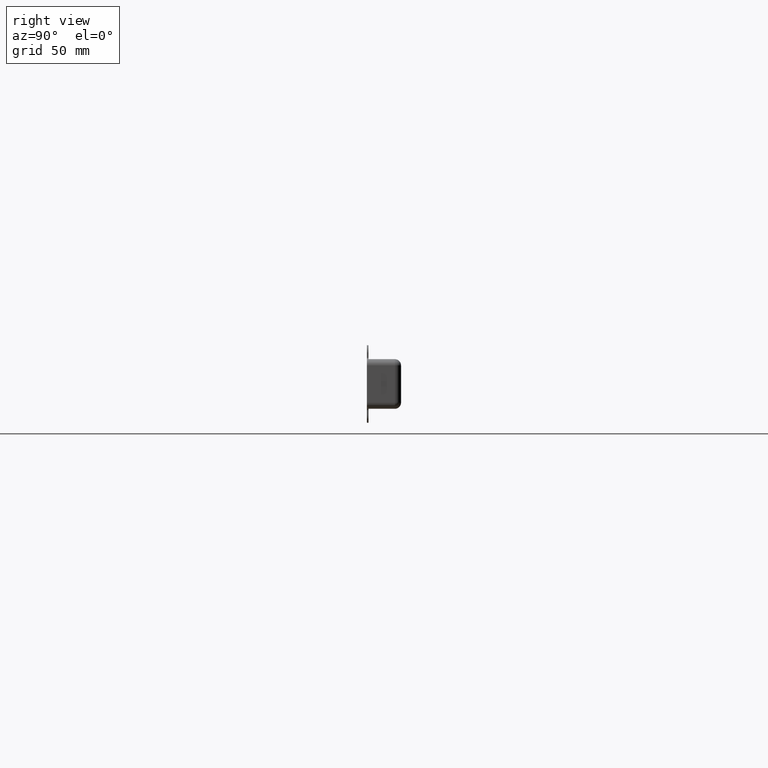
[diagram: clean part render]
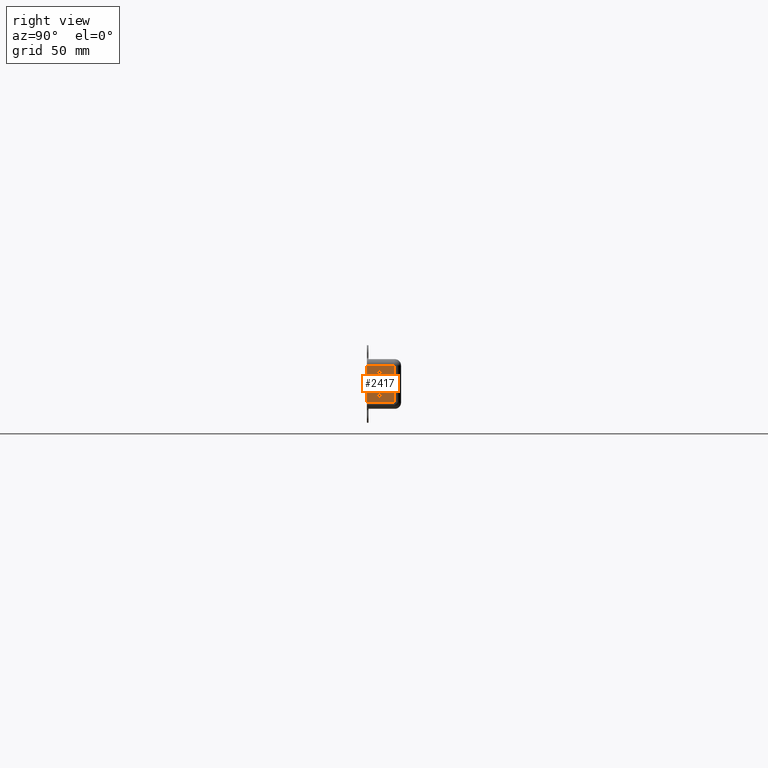
[diagram: same view with one face highlighted and labeled with its STEP entity id]
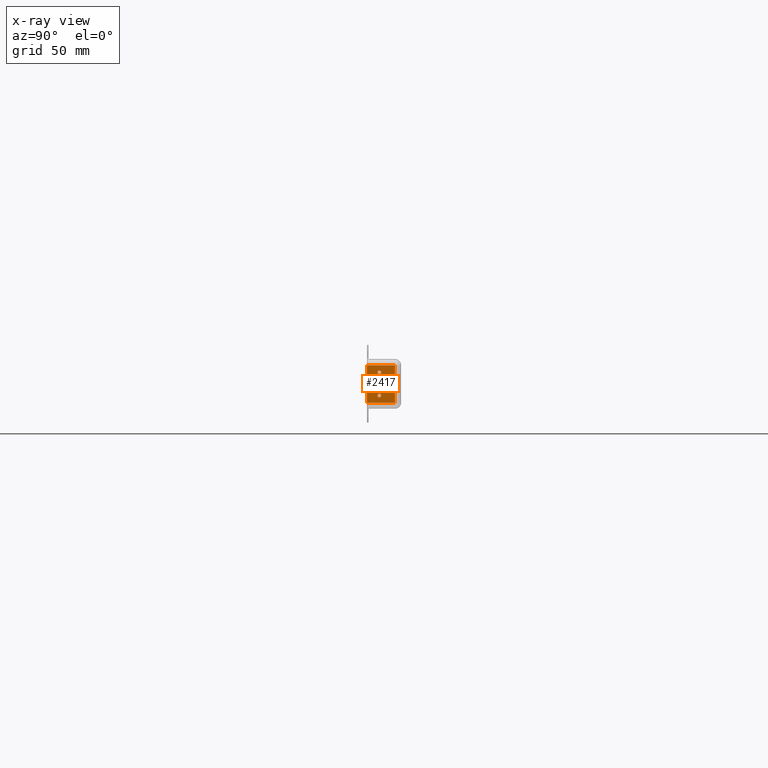
[diagram: x-ray of the same camera — body ghosted, the highlighted face saturated]
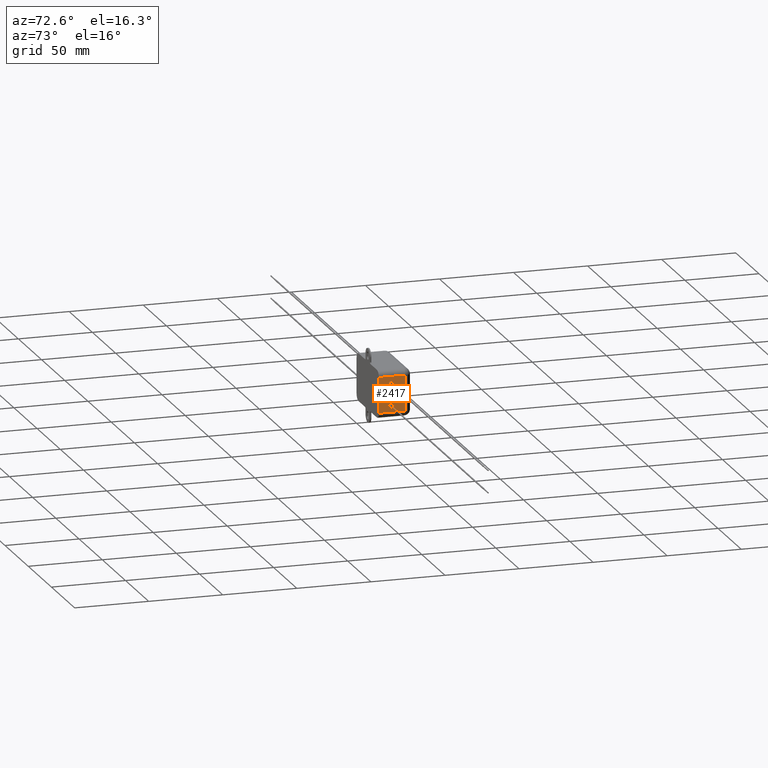
[diagram: same view with one face highlighted and labeled with its STEP entity id]
A machine part, right view. The second image highlights one B-rep face of the part: STEP entity #2417.
The next image is the same camera in x-ray: the body ghosted, the highlighted face saturated — about 0% of this face is hidden behind the body in this view.
A second angle (auxiliary view) of the same face is appended — the face is thin or edge-on in the first view.
In plain terms, the highlighted planar face has unit normal (-1, 0, 0).
Its self-contained STEP definition (entity closure, byte-faithful):
#42 = EDGE_LOOP ( 'NONE', ( #2345, #3124 ) ) ;
#102 = CARTESIAN_POINT ( 'NONE',  ( 48.00000000000000000, 22.00000000000000000, -4.000000000000000000 ) ) ;
#112 = CARTESIAN_POINT ( 'NONE',  ( 48.00000000000000000, 8.000000000000000000, -22.25415175493354500 ) ) ;
#248 = CARTESIAN_POINT ( 'NONE',  ( 48.00000000000000000, 8.000000000000000000, -24.74584824506645500 ) ) ;
#320 = VERTEX_POINT ( 'NONE', #4205 ) ;
#355 = ORIENTED_EDGE ( 'NONE', *, *, #4494, .T. ) ;
#445 = ORIENTED_EDGE ( 'NONE', *, *, #4934, .F. ) ;
#547 = EDGE_CURVE ( 'NONE', #809, #1066, #2041, .T. ) ;
#648 = DIRECTION ( 'NONE',  ( -0.0000000000000000000, -0.0000000000000000000, 1.000000000000000000 ) ) ;
#752 = DIRECTION ( 'NONE',  ( 0.0000000000000000000, 0.0000000000000000000, 1.000000000000000000 ) ) ;
#766 = EDGE_LOOP ( 'NONE', ( #2587, #915, #355, #4715 ) ) ;
#809 = VERTEX_POINT ( 'NONE', #248 ) ;
#828 = CARTESIAN_POINT ( 'NONE',  ( 48.00000000000000000, 0.0000000000000000000, -28.00000000000000000 ) ) ;
#851 = CARTESIAN_POINT ( 'NONE',  ( 48.00000000000000000, 22.00000000000000000, -28.00000000000000000 ) ) ;
#915 = ORIENTED_EDGE ( 'NONE', *, *, #3127, .T. ) ;
#982 = EDGE_LOOP ( 'NONE', ( #445, #4886 ) ) ;
#1029 = DIRECTION ( 'NONE',  ( -1.000000000000000000, -0.0000000000000000000, -0.0000000000000000000 ) ) ;
#1066 = VERTEX_POINT ( 'NONE', #112 ) ;
#1367 = VERTEX_POINT ( 'NONE', #1901 ) ;
#1392 = CARTESIAN_POINT ( 'NONE',  ( 48.00000000000000000, 18.00000000000000000, 0.0000000000000000000 ) ) ;
#1436 = VECTOR ( 'NONE', #2073, 1000.000000000000000 ) ;
#1488 = VERTEX_POINT ( 'NONE', #4306 ) ;
#1507 = DIRECTION ( 'NONE',  ( 0.0000000000000000000, 0.0000000000000000000, 1.000000000000000000 ) ) ;
#1582 = CARTESIAN_POINT ( 'NONE',  ( 48.00000000000000000, 8.000000000000000000, -23.50000000000000000 ) ) ;
#1616 = CARTESIAN_POINT ( 'NONE',  ( 48.00000000000000000, 0.0000000000000000000, 0.0000000000000000000 ) ) ;
#1623 = VECTOR ( 'NONE', #648, 1000.000000000000000 ) ;
#1626 = CIRCLE ( 'NONE', #2787, 1.245848245066454100 ) ;
#1816 = DIRECTION ( 'NONE',  ( 0.0000000000000000000, 0.0000000000000000000, 1.000000000000000000 ) ) ;
#1901 = CARTESIAN_POINT ( 'NONE',  ( 48.00000000000000000, 8.000000000000000000, -9.745848245066456500 ) ) ;
#1922 = LINE ( 'NONE', #851, #3099 ) ;
#2014 = AXIS2_PLACEMENT_3D ( 'NONE', #4453, #2514, #2936 ) ;
#2041 = CIRCLE ( 'NONE', #3906, 1.245848245066454100 ) ;
#2073 = DIRECTION ( 'NONE',  ( 0.0000000000000000000, -1.000000000000000000, 0.0000000000000000000 ) ) ;
#2158 = VECTOR ( 'NONE', #4822, 1000.000000000000000 ) ;
#2222 = LINE ( 'NONE', #1616, #2158 ) ;
#2240 = CARTESIAN_POINT ( 'NONE',  ( 48.00000000000000000, 8.000000000000000000, -8.500000000000000000 ) ) ;
#2294 = DIRECTION ( 'NONE',  ( -1.000000000000000000, -0.0000000000000000000, -0.0000000000000000000 ) ) ;
#2345 = ORIENTED_EDGE ( 'NONE', *, *, #4159, .T. ) ;
#2417 = ADVANCED_FACE ( 'NONE', ( #4264, #4452, #3273 ), #4507, .F. ) ;
#2514 = DIRECTION ( 'NONE',  ( 1.000000000000000000, -0.0000000000000000000, -0.0000000000000000000 ) ) ;
#2587 = ORIENTED_EDGE ( 'NONE', *, *, #3134, .T. ) ;
#2642 = DIRECTION ( 'NONE',  ( 1.000000000000000000, -0.0000000000000000000, -0.0000000000000000000 ) ) ;
#2787 = AXIS2_PLACEMENT_3D ( 'NONE', #4198, #1029, #1816 ) ;
#2803 = LINE ( 'NONE', #1392, #1623 ) ;
#2911 = EDGE_CURVE ( 'NONE', #1367, #320, #4565, .T. ) ;
#2936 = DIRECTION ( 'NONE',  ( 0.0000000000000000000, 0.0000000000000000000, 1.000000000000000000 ) ) ;
#3099 = VECTOR ( 'NONE', #3605, 1000.000000000000000 ) ;
#3124 = ORIENTED_EDGE ( 'NONE', *, *, #547, .T. ) ;
#3127 = EDGE_CURVE ( 'NONE', #4006, #1488, #1922, .T. ) ;
#3134 = EDGE_CURVE ( 'NONE', #3655, #4006, #2222, .T. ) ;
#3139 = VERTEX_POINT ( 'NONE', #4040 ) ;
#3237 = LINE ( 'NONE', #102, #1436 ) ;
#3273 = FACE_BOUND ( 'NONE', #982, .T. ) ;
#3360 = AXIS2_PLACEMENT_3D ( 'NONE', #4305, #4722, #3528 ) ;
#3528 = DIRECTION ( 'NONE',  ( 0.0000000000000000000, 0.0000000000000000000, 1.000000000000000000 ) ) ;
#3605 = DIRECTION ( 'NONE',  ( -0.0000000000000000000, 1.000000000000000000, -0.0000000000000000000 ) ) ;
#3655 = VERTEX_POINT ( 'NONE', #4240 ) ;
#3672 = AXIS2_PLACEMENT_3D ( 'NONE', #2240, #2642, #1507 ) ;
#3906 = AXIS2_PLACEMENT_3D ( 'NONE', #1582, #2294, #752 ) ;
#4006 = VERTEX_POINT ( 'NONE', #828 ) ;
#4040 = CARTESIAN_POINT ( 'NONE',  ( 48.00000000000000000, 18.00000000000000000, -4.000000000000000000 ) ) ;
#4120 = EDGE_CURVE ( 'NONE', #3139, #3655, #3237, .T. ) ;
#4159 = EDGE_CURVE ( 'NONE', #1066, #809, #1626, .T. ) ;
#4198 = CARTESIAN_POINT ( 'NONE',  ( 48.00000000000000000, 8.000000000000000000, -23.50000000000000000 ) ) ;
#4205 = CARTESIAN_POINT ( 'NONE',  ( 48.00000000000000000, 8.000000000000000000, -7.254151754933545200 ) ) ;
#4240 = CARTESIAN_POINT ( 'NONE',  ( 48.00000000000000000, 0.0000000000000000000, -4.000000000000000000 ) ) ;
#4264 = FACE_BOUND ( 'NONE', #42, .T. ) ;
#4305 = CARTESIAN_POINT ( 'NONE',  ( 48.00000000000000000, 22.00000000000000000, 0.0000000000000000000 ) ) ;
#4306 = CARTESIAN_POINT ( 'NONE',  ( 48.00000000000000000, 18.00000000000000000, -28.00000000000000000 ) ) ;
#4452 = FACE_OUTER_BOUND ( 'NONE', #766, .T. ) ;
#4453 = CARTESIAN_POINT ( 'NONE',  ( 48.00000000000000000, 8.000000000000000000, -8.500000000000000000 ) ) ;
#4494 = EDGE_CURVE ( 'NONE', #1488, #3139, #2803, .T. ) ;
#4507 = PLANE ( 'NONE',  #3360 ) ;
#4565 = CIRCLE ( 'NONE', #3672, 1.245848245066455900 ) ;
#4715 = ORIENTED_EDGE ( 'NONE', *, *, #4120, .T. ) ;
#4722 = DIRECTION ( 'NONE',  ( -1.000000000000000000, 0.0000000000000000000, 0.0000000000000000000 ) ) ;
#4822 = DIRECTION ( 'NONE',  ( 0.0000000000000000000, 0.0000000000000000000, -1.000000000000000000 ) ) ;
#4886 = ORIENTED_EDGE ( 'NONE', *, *, #2911, .F. ) ;
#4934 = EDGE_CURVE ( 'NONE', #320, #1367, #5006, .T. ) ;
#5006 = CIRCLE ( 'NONE', #2014, 1.245848245066455900 ) ;